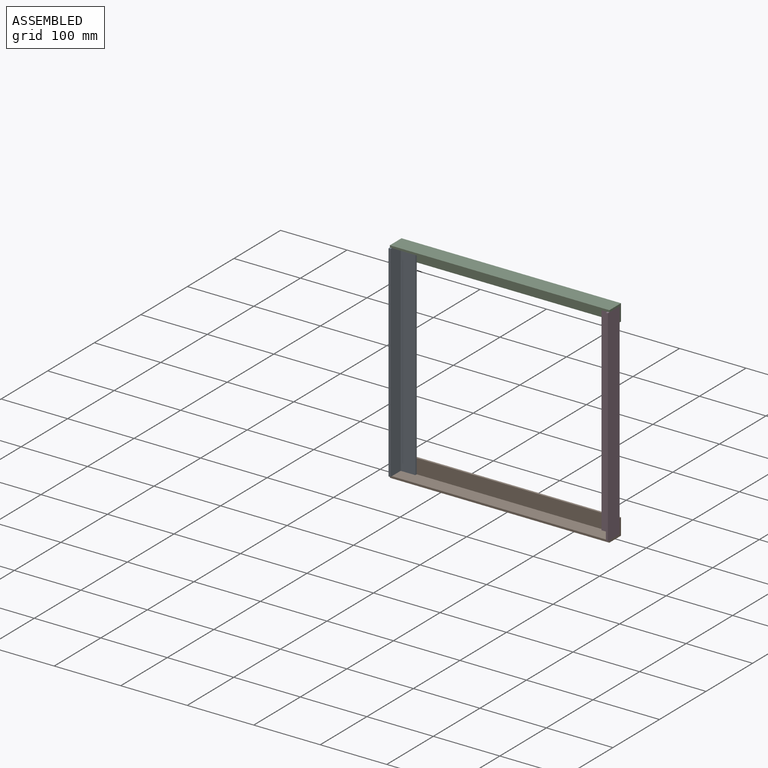
[diagram: assembled view]
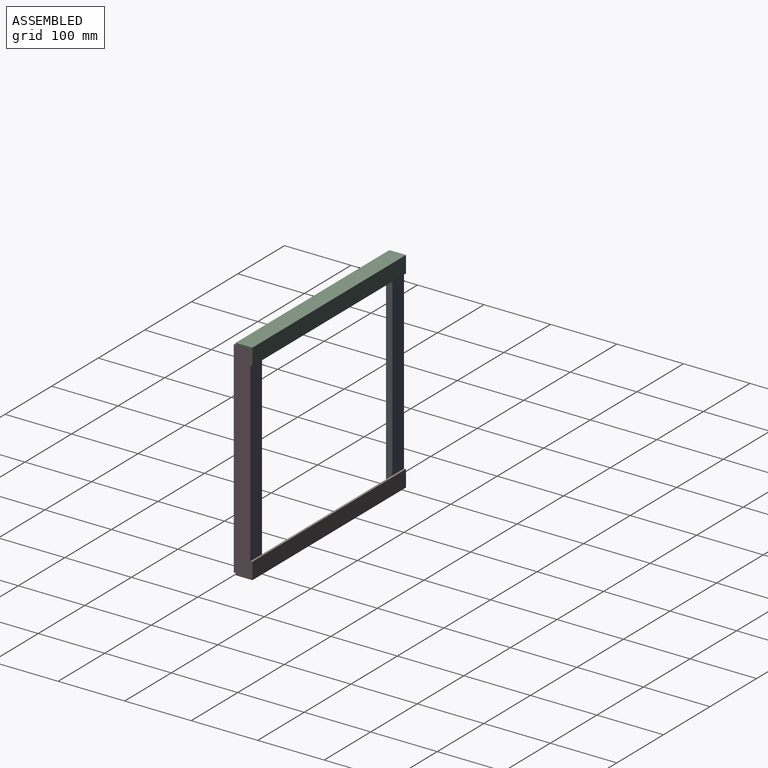
[diagram: assembled view, second angle]
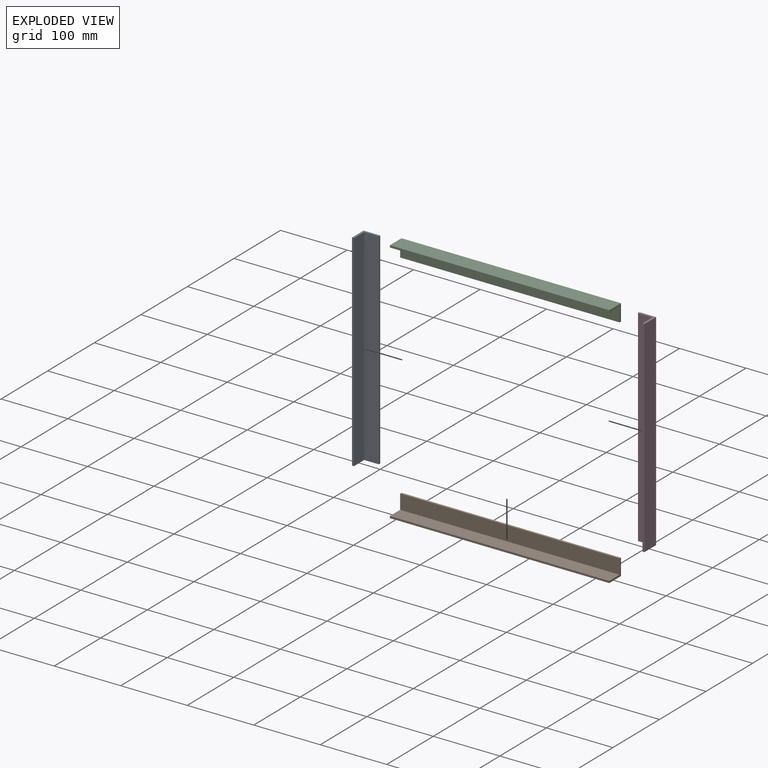
[diagram: exploded view]
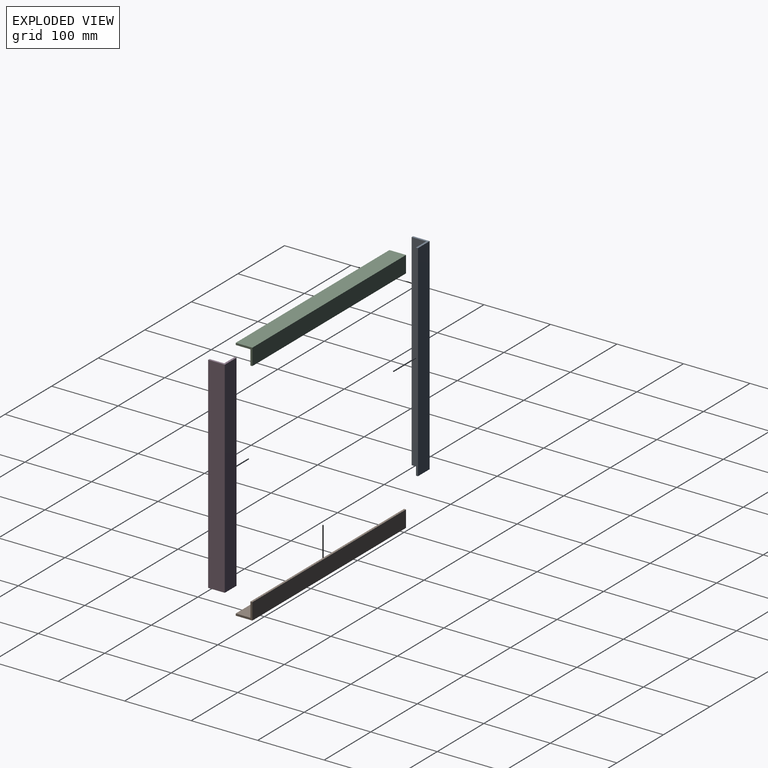
[diagram: exploded view, second angle]
ASSEMBLY  parts=4 mates=9
PART A: 8 faces, bbox 25x25x310 mm
  f0: plane 310x25mm, normal (0,1,0), area 7750mm2, adj f1,f5,f6,f7
  f1: plane 310x25mm, normal (-1,0,0), area 7750mm2, adj f0,f2,f6,f7
  f2: plane 310x3mm, normal (0,-1,0), area 930mm2, adj f1,f3,f6,f7
  f3: plane 310x22mm, normal (1,0,0), area 6820mm2, adj f2,f4,f6,f7
  f4: plane 310x22mm, normal (0,-1,0), area 6820mm2, adj f3,f5,f6,f7
  f5: plane 310x3mm, normal (1,0,0), area 930mm2, adj f0,f4,f6,f7
  f6: plane 25x25mm, normal (0,0,1), area 141mm2, adj f0,f1,f2,f3,f4,f5
  f7: plane 25x25mm, normal (0,0,-1), area 141mm2, adj f0,f1,f2,f3,f4,f5
PART B: 8 faces, bbox 25x25x330 mm
  f0: plane 330x25mm, normal (-1,0,0), area 8250mm2, adj f1,f5,f6,f7
  f1: plane 330x25mm, normal (0,-1,0), area 8250mm2, adj f0,f2,f6,f7
  f2: plane 330x3mm, normal (1,0,0), area 990mm2, adj f1,f3,f6,f7
  f3: plane 330x22mm, normal (0,1,0), area 7260mm2, adj f2,f4,f6,f7
  f4: plane 330x22mm, normal (1,0,0), area 7260mm2, adj f3,f5,f6,f7
  f5: plane 330x3mm, normal (0,1,0), area 990mm2, adj f0,f4,f6,f7
  f6: plane 25x25mm, normal (0,0,1), area 141mm2, adj f0,f1,f2,f3,f4,f5
  f7: plane 25x25mm, normal (0,0,-1), area 141mm2, adj f0,f1,f2,f3,f4,f5
PART C: same geometry as B
PART D: same geometry as A
PLACE A at identity fixed
PLACE B rot(axis=(0.71,0,0.71),180deg) t=(0,3,-3)mm
PLACE C rot(axis=(-0.58,0.58,-0.58),120deg) t=(0,3,313)mm
PLACE D rot(axis=(0,0,-1),90deg) t=(330,0,0)mm
MATE planar D.f1 <-> C.f4  axis (0,1,0) through (317.5,0,155)mm
MATE planar A.f1 <-> C.f7  axis (-1,0,0) through (0,-12.5,155)mm
MATE planar C.f6 <-> D.f0  axis (1,0,0) through (330,-4.35,305.65)mm
MATE planar D.f0 <-> B.f6  axis (1,0,0) through (330,-12.5,155)mm
MATE planar B.f4 <-> D.f7  axis (0,0,1) through (165,-11,0)mm
MATE planar C.f3 <-> D.f6  axis (0,0,-1) through (330,-22,310)mm
MATE planar C.f4 <-> A.f0  axis (0,-1,0) through (165,0,299)mm
MATE planar B.f3 <-> D.f1  axis (0,-1,0) through (165,0,11)mm
MATE planar C.f3 <-> A.f6  axis (0,0,-1) through (165,-11,310)mm
